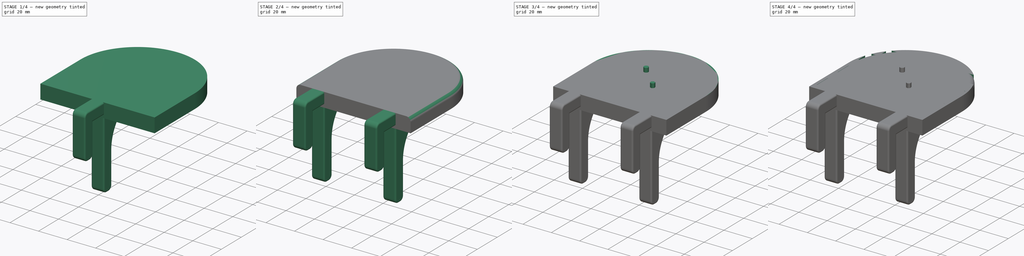
[diagram: build sequence overview — one tinted view per stage of 4, left to right]
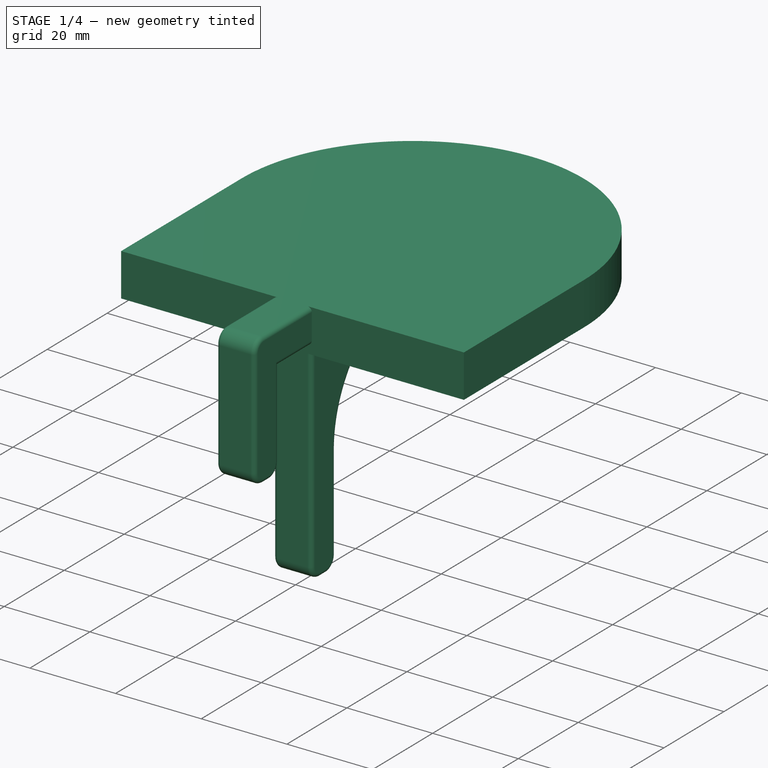
[diagram: stage 1 of 4 — iso view after this stage's code; geometry added in this stage tinted green]
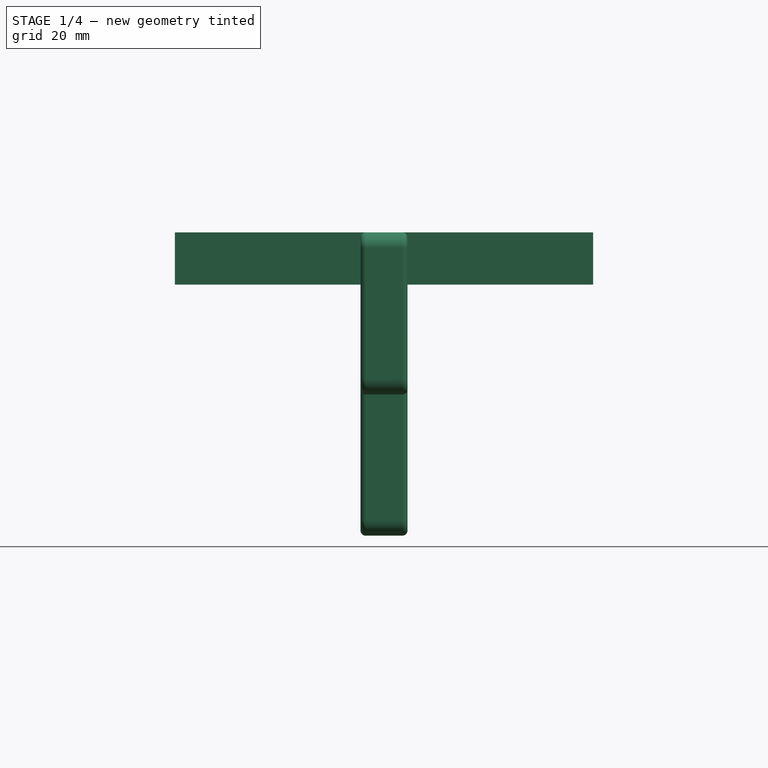
[diagram: stage 1 of 4 — front view after this stage's code; geometry added in this stage tinted green]
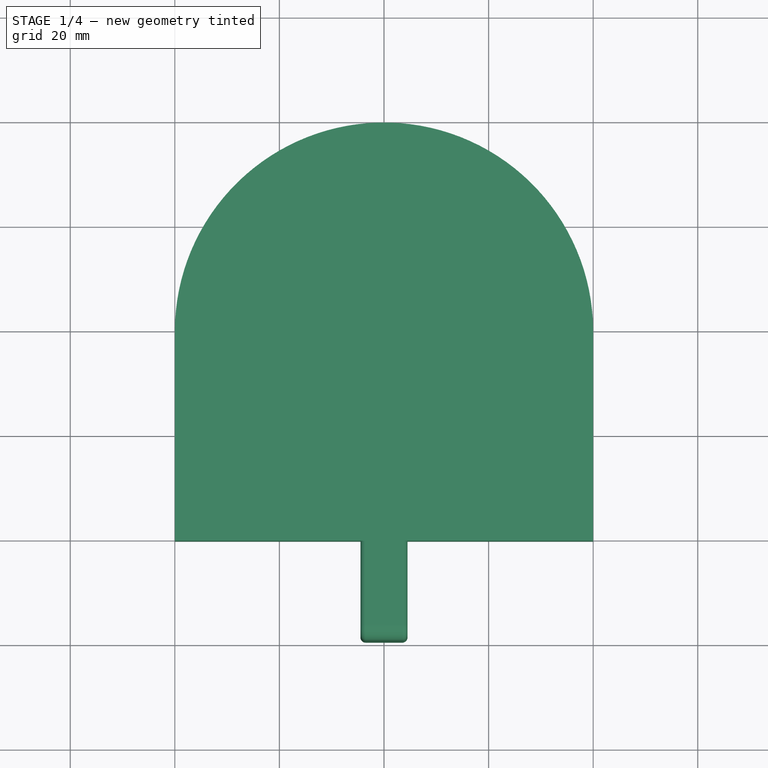
[diagram: stage 1 of 4 — top view after this stage's code; geometry added in this stage tinted green]
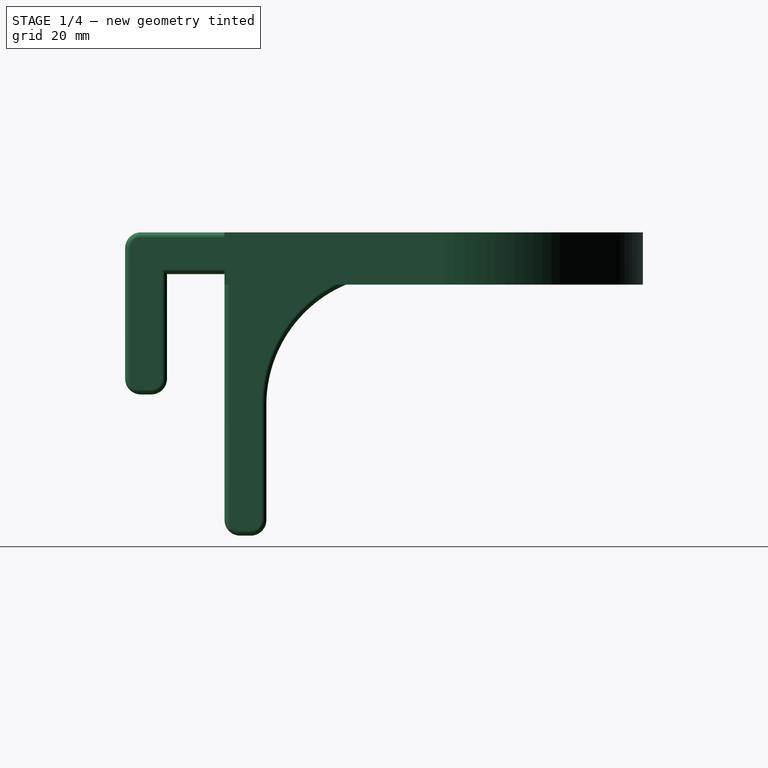
[diagram: stage 1 of 4 — right view after this stage's code; geometry added in this stage tinted green]
FCSTD DOCUMENT  (FreeCAD 1.0R38806 (Git))
Label: ActionFigureBracket
License: All rights reserved
LicenseURL: http://en.wikipedia.org/wiki/All_rights_reserved
objects: Sketcher::SketchObject×5, PartDesign::Body×4, PartDesign::Pad×3, PartDesign::Fillet×3, PartDesign::FeatureBase×2, PartDesign::Pocket×2, App::Part×2, App::Link×1, App::LinkGroup×1, Part::MultiFuse×1, Spreadsheet::Sheet×1
note: 43 computed .brp shape members not serialized (recipe doc carries the construction recipe); baked Part::Feature solids carry a one-line shape summary decoded from their .brp

FEATURE [Sketcher::SketchObject] Sketch  label="HookSketch"
  ArcFitTolerance = 0
  AttachmentSupport = -> [YZ_Plane001]
  FullyConstrained = true
  MakeInternals = false
  MapMode = 5
  Placement = pos=(0,0,0) rot=(0.57735,0.57735,0.57735;2.0944rad)
  sketch-geometry (28):
    g0: LineSegment StartX=3 StartY=0 StartZ=0 EndX=66 EndY=0 EndZ=0
    g1: LineSegment StartX=69 StartY=-3 StartZ=0 EndX=69 EndY=-5 EndZ=0
    g2: LineSegment StartX=66 StartY=-8 StartZ=0 EndX=52 EndY=-8 EndZ=0
    g3: LineSegment StartX=27 StartY=-33 StartZ=0 EndX=27 EndY=-55 EndZ=0
    g4: LineSegment StartX=24 StartY=-58 StartZ=0 EndX=22 EndY=-58 EndZ=0
    g5: LineSegment StartX=19 StartY=-55 StartZ=0 EndX=19 EndY=-8 EndZ=0
    g6: LineSegment StartX=19 StartY=-8 StartZ=0 EndX=8 EndY=-8 EndZ=0
    g7: LineSegment StartX=8 StartY=-8 StartZ=0 EndX=8 EndY=-28 EndZ=0
    g8: LineSegment StartX=5 StartY=-31 StartZ=0 EndX=3 EndY=-31 EndZ=0
    g9: LineSegment StartX=0 StartY=-28 StartZ=0 EndX=0 EndY=-3 EndZ=0
    g10: ArcOfCircle CenterX=3 CenterY=-3 CenterZ=0 NormalX=0 NormalY=0 NormalZ=1 AngleXU=0 Radius=3 StartAngle=1.5708 EndAngle=3.14159
    g11: GeomPoint [constr] X=0 Y=0 Z=0
    g12: ArcOfCircle CenterX=66 CenterY=-3 CenterZ=0 NormalX=0 NormalY=0 NormalZ=1 AngleXU=0 Radius=3 StartAngle=0 EndAngle=1.5708
    g13: GeomPoint [constr] X=69 Y=0 Z=0
    g14: ArcOfCircle CenterX=66 CenterY=-5 CenterZ=0 NormalX=0 NormalY=0 NormalZ=1 AngleXU=0 Radius=3 StartAngle=4.71239 EndAngle=6.28319
    g15: GeomPoint [constr] X=69 Y=-8 Z=0
    g16: ArcOfCircle CenterX=52 CenterY=-33 CenterZ=0 NormalX=0 NormalY=0 NormalZ=1 AngleXU=0 Radius=25 StartAngle=1.5708 EndAngle=3.14159
    g17: GeomPoint [constr] X=27 Y=-8 Z=0
    g18: ArcOfCircle CenterX=24 CenterY=-55 CenterZ=0 NormalX=0 NormalY=0 NormalZ=1 AngleXU=0 Radius=3 StartAngle=4.71239 EndAngle=6.28319
    g19: GeomPoint [constr] X=27 Y=-58 Z=0
    g20: ArcOfCircle CenterX=22 CenterY=-55 CenterZ=0 NormalX=0 NormalY=0 NormalZ=1 AngleXU=0 Radius=3 StartAngle=3.14159 EndAngle=4.71239
    g21: GeomPoint [constr] X=19 Y=-58 Z=0
    g22: GeomPoint [constr] X=19 Y=-8 Z=0
    g23: GeomPoint [constr] X=8 Y=-8 Z=0
    g24: ArcOfCircle CenterX=5 CenterY=-28 CenterZ=0 NormalX=0 NormalY=0 NormalZ=1 AngleXU=0 Radius=3 StartAngle=4.71239 EndAngle=6.28319
    g25: GeomPoint [constr] X=8 Y=-31 Z=0
    g26: ArcOfCircle CenterX=3 CenterY=-28 CenterZ=0 NormalX=0 NormalY=0 NormalZ=1 AngleXU=0 Radius=3 StartAngle=3.14159 EndAngle=4.71239
    g27: GeomPoint [constr] X=0 Y=-31 Z=0
  constraints (64):
    c: Coincident(g-1,g11)
    c: PointOnObject(g13,g-1)
    c: Vertical(g1)
    c: Horizontal(g2)
    c: Vertical(g3)
    c: Horizontal(g4)
    c: Vertical(g5)
    c: Horizontal(g6)
    c: Vertical(g7)
    c: PointOnObject(g27,g-2)
    c: Horizontal(g8)
    c: DistanceX(g21,g19) = 8
    c: DistanceX(g27,g25) = 8
    c: DistanceY(g19,g17) = 50
    c: DistanceY(g25,g23) = 23
    c: DistanceY(g15,g13) = 8
    c: DistanceY(g27,g11) = 31
    c: PointOnObject(g11,g9)
    c: PointOnObject(g11,g0)
    c: Tangent(g9,g10) = 1.5708
    c: Tangent(g0,g10) = 1.5708
    c: PointOnObject(g13,g0)
    c: PointOnObject(g13,g1)
    c: Tangent(g0,g12) = 1.5708
    c: Tangent(g1,g12) = 1.5708
    c: PointOnObject(g15,g1)
    c: PointOnObject(g15,g2)
    c: Tangent(g1,g14) = 1.5708
    c: Tangent(g2,g14) = 1.5708
    c: PointOnObject(g17,g2)
    c: PointOnObject(g17,g3)
    c: Tangent(g2,g16) = -1.5708
    c: Tangent(g3,g16) = -1.5708
    c: PointOnObject(g19,g3)
    c: PointOnObject(g19,g4)
    c: Tangent(g3,g18) = 1.5708
    c: Tangent(g4,g18) = 1.5708
    c: PointOnObject(g21,g4)
    c: PointOnObject(g21,g5)
    c: Tangent(g4,g20) = 1.5708
    c: Tangent(g5,g20) = 1.5708
    c: PointOnObject(g22,g5)
    c: PointOnObject(g22,g6)
    c: PointOnObject(g25,g7)
    c: PointOnObject(g25,g8)
    c: Tangent(g7,g24) = 1.5708
    c: Tangent(g8,g24) = 1.5708
    c: PointOnObject(g27,g8)
    c: PointOnObject(g27,g9)
    c: Tangent(g8,g26) = 1.5708
    c: Tangent(g9,g26) = 1.5708
    c: Equal(g10,g12)
    c: Equal(g10,g14)
    c: Equal(g10,g18)
    c: Equal(g10,g20)
    c: Equal(g10,g24)
    c: Equal(g10,g26)
    c: Radius(g10) = 3
    c: Radius(g16) = 25
    c: DistanceX(g6,g6) = 11
    c: Coincident(g7,g23)
    c: Coincident(g5,g6)
    c: Coincident(g7,g6)
    c: DistanceX(g5,g1) = 50
FEATURE [PartDesign::Pad] Pad  label="HookPad"
  Direction = (1,0,0)
  Length = 9
  Length2 = 10
  Midplane = true
  Placement = pos=(0,0,0) rot=(1,1,1;2.0944rad)
  Profile = -> Sketch
  ReferenceAxis = -> Sketch [N_Axis]
  Suppressed = false
  Type = 0
FEATURE [PartDesign::Fillet] Fillet  label="HookBodyFillet"
  Base = -> Pad [Face20,Face19]
  BaseFeature = -> Pad
  Placement = pos=(0,0,0) rot=(1,1,1;2.0944rad)
  Radius = 1
  SupportTransform = false
  Suppressed = false
  UseAllEdges = false
FEATURE [PartDesign::Body] Body  label="HookBody"
  AllowCompound = false
  Group = -> [Sketch,Pad,Fillet]
  Origin = -> Origin001
  Placement = pos=(-25,0,0) rot=(0,0,1;0rad)
  Tip = -> Fillet
FEATURE [Sketcher::SketchObject] Sketch001  label="PlateauBodySketch"
  ArcFitTolerance = 0
  AttachmentSupport = -> [XY_Plane002]
  FullyConstrained = true
  MakeInternals = false
  MapMode = 5
  expr: Constraints[17] = <<Spreadsheet>>.depth - <<Spreadsheet>>.width / 2
  expr: Constraints[9] = Spreadsheet.width
  sketch-geometry (7):
    g0: LineSegment StartX=-40 StartY=59 StartZ=0 EndX=-40 EndY=19 EndZ=0
    g1: LineSegment StartX=-40 StartY=19 StartZ=0 EndX=40 EndY=19 EndZ=0
    g2: LineSegment [constr] StartX=-40 StartY=19 StartZ=0 EndX=0 EndY=0 EndZ=0
    g3: LineSegment [constr] StartX=0 StartY=0 StartZ=0 EndX=40 EndY=19 EndZ=0
    g4: LineSegment StartX=40 StartY=19 StartZ=0 EndX=40 EndY=59 EndZ=0
    g5: GeomPoint [constr] X=2.5e-15 Y=59 Z=0
    g6: ArcOfCircle CenterX=2.5e-15 CenterY=59 CenterZ=0 NormalX=0 NormalY=0 NormalZ=1 AngleXU=0 Radius=40 StartAngle=0 EndAngle=3.14159
  constraints (18):
    c: Coincident(g0,g1)
    c: Horizontal(g1)
    c: DistanceY(g-1,g0) = 19
    c: Vertical(g0)
    c: Coincident(g2,g0)
    c: Coincident(g2,g-1)
    c: Coincident(g3,g2)
    c: Coincident(g3,g1)
    c: Equal(g2,g3)
    c: DistanceX(g1,g1) = 80
    c: Coincident(g4,g1)
    c: Vertical(g4)
    c: Horizontal(g4,g0)
    c: Horizontal(g0,g5)
    c: Coincident(g6,g5)
    c: Coincident(g6,g0)
    c: Coincident(g6,g4)
    c: DistanceY(g0,g0) = 40
FEATURE [App::Link] Link  label="HookBody001"
  LinkTransform = true
  LinkedObject = -> Body
FEATURE [App::LinkGroup] LinkGroup
  ElementList = -> [Link]
  LinkMode = 1
  Placement = pos=(50,0,0) rot=(0,0,1;0rad)
FEATURE [PartDesign::Pad] Pad001  label="PlateauPad"
  Direction = (0,0,1)
  Length = 10
  Length2 = 10
  Profile = -> Sketch001
  ReferenceAxis = -> Sketch001 [N_Axis]
  Reversed = true
  Suppressed = false
  Type = 0
  expr: Length = <<Spreadsheet>>.height
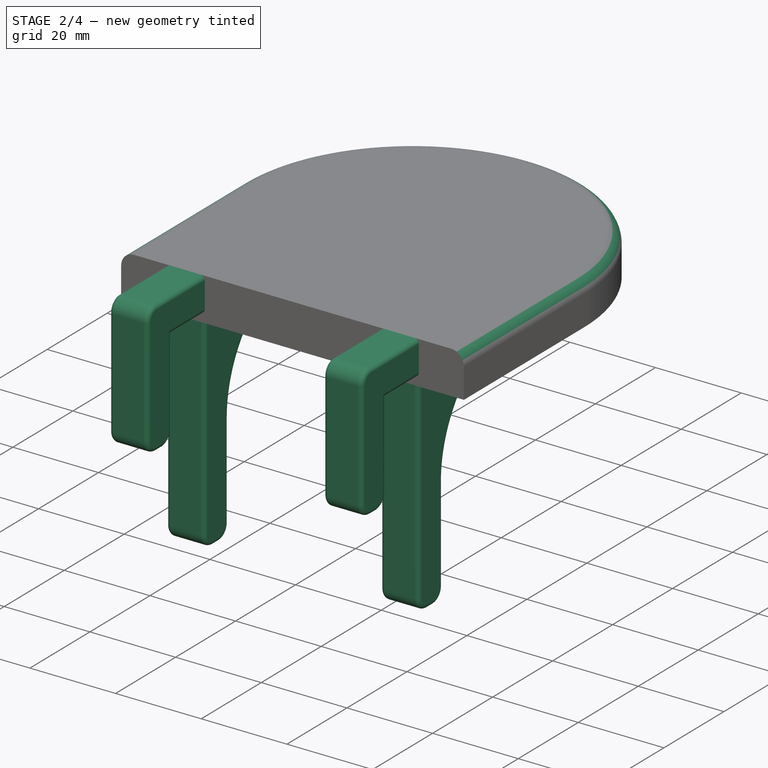
[diagram: stage 2 of 4 — iso view after this stage's code; geometry added in this stage tinted green]
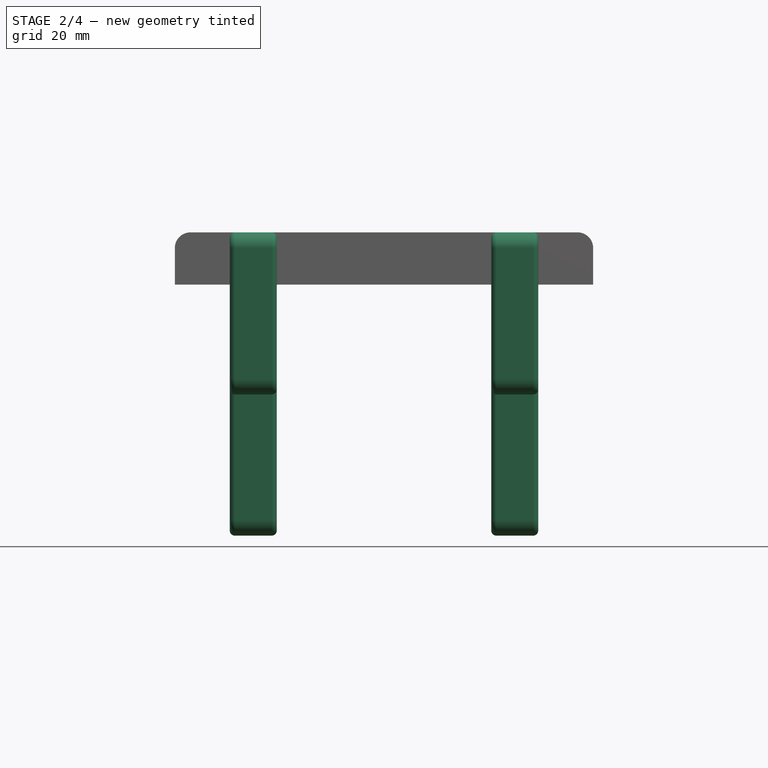
[diagram: stage 2 of 4 — front view after this stage's code; geometry added in this stage tinted green]
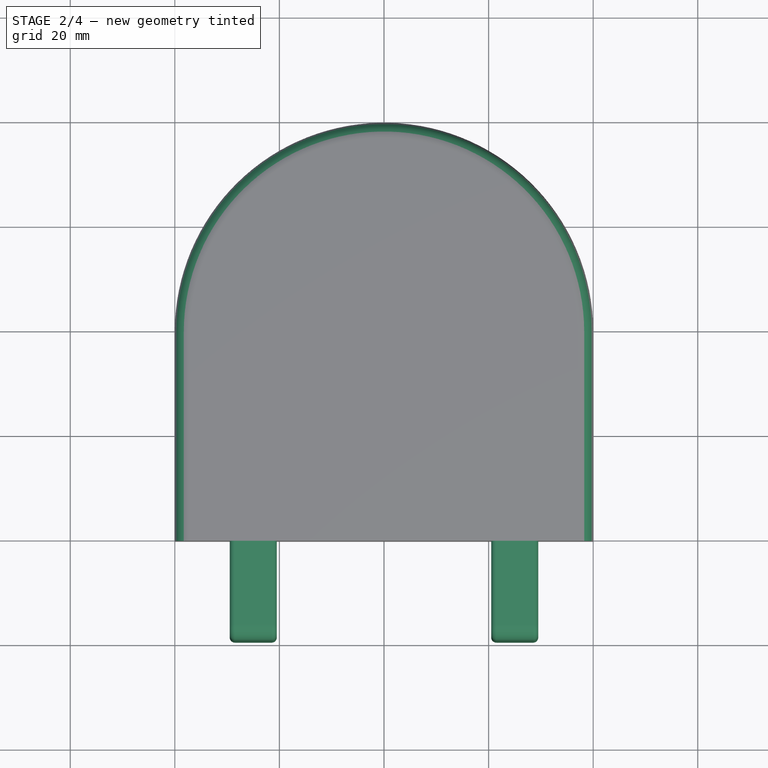
[diagram: stage 2 of 4 — top view after this stage's code; geometry added in this stage tinted green]
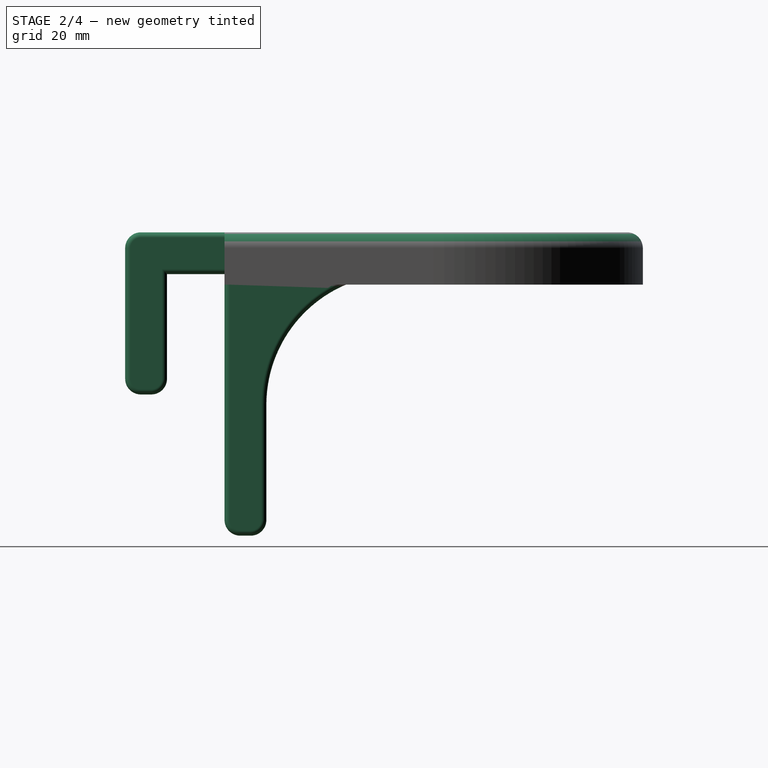
[diagram: stage 2 of 4 — right view after this stage's code; geometry added in this stage tinted green]
FEATURE [PartDesign::Body] Body001  label="PlateauBody"
  AllowCompound = false
  Group = -> [Sketch001,Pad001]
  Origin = -> Origin002
  Tip = -> Pad001
FEATURE [Part::MultiFuse] Fusion  label="BaseShelf"
  Refine = true
  Shapes = -> [Body,Body001,LinkGroup]
FEATURE [PartDesign::Body] Body002  label="Body"
  AllowCompound = false
  BaseFeature = -> Fusion
  Group = -> [BaseFeature,Sketch002,Sketch003,Pocket,Pocket001,Fillet001]
  Origin = -> Origin003
  Tip = -> Fillet001
FEATURE [App::Part] Part  label="OnePieceBones"
  Group = -> [Body002]
  Origin = -> Origin
FEATURE [PartDesign::FeatureBase] BaseFeature001
  BaseFeature = -> Fusion
  Suppressed = false
FEATURE [PartDesign::Fillet] Fillet003
  Base = -> BaseFeature001 [Edge67]
  BaseFeature = -> BaseFeature001
  Radius = 3
  SupportTransform = false
  Suppressed = false
  UseAllEdges = false
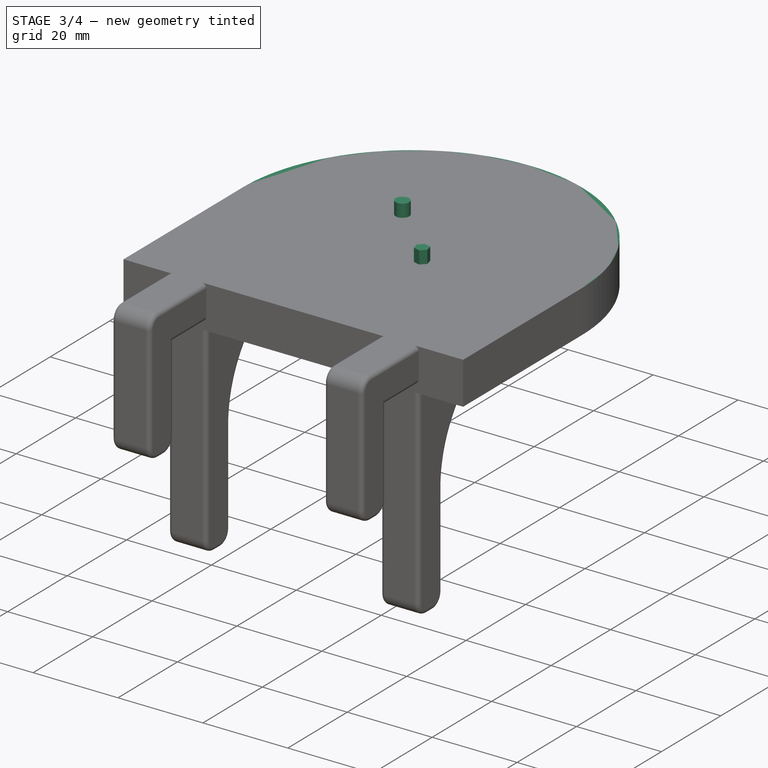
[diagram: stage 3 of 4 — iso view after this stage's code; geometry added in this stage tinted green]
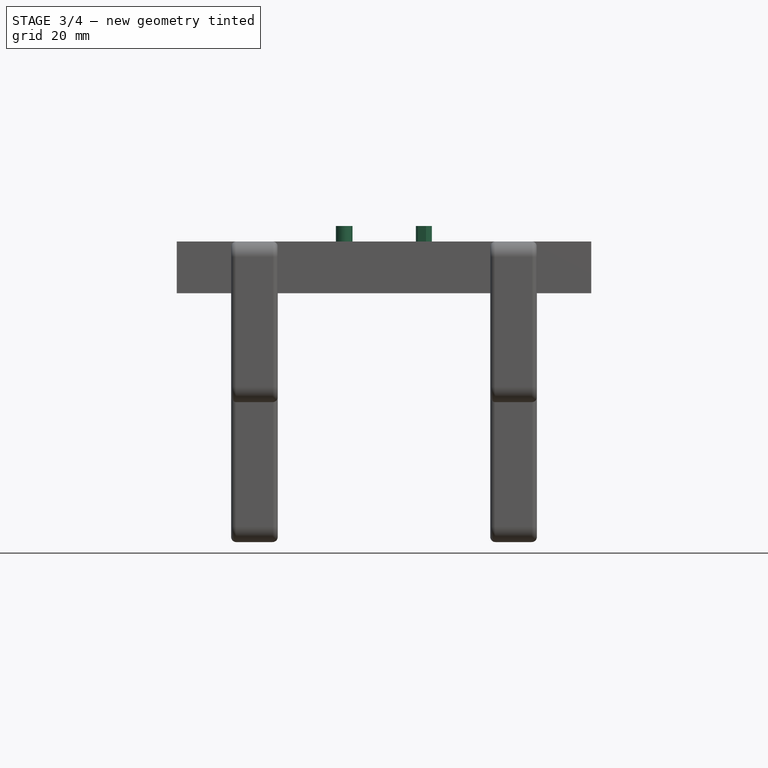
[diagram: stage 3 of 4 — front view after this stage's code; geometry added in this stage tinted green]
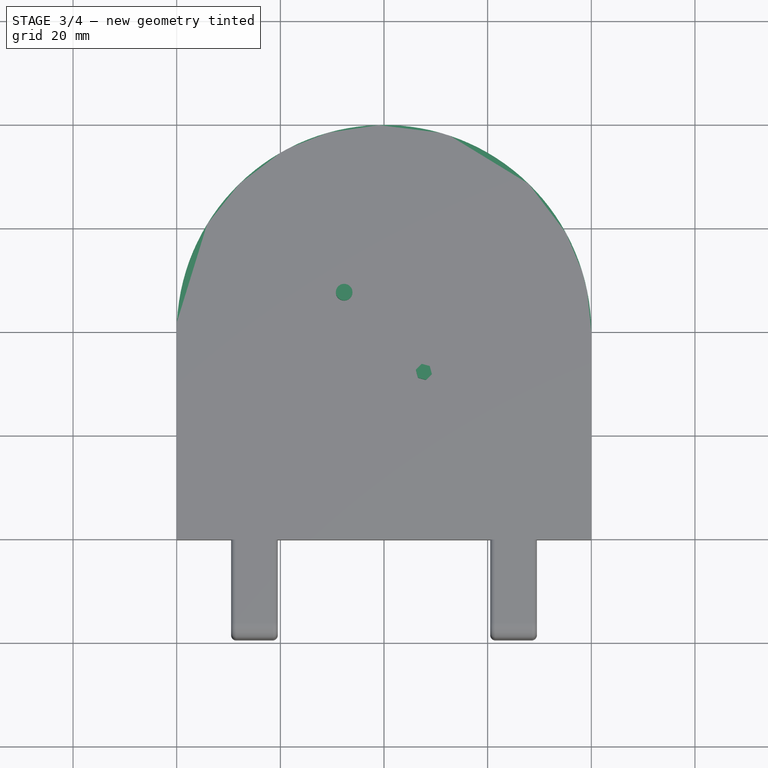
[diagram: stage 3 of 4 — top view after this stage's code; geometry added in this stage tinted green]
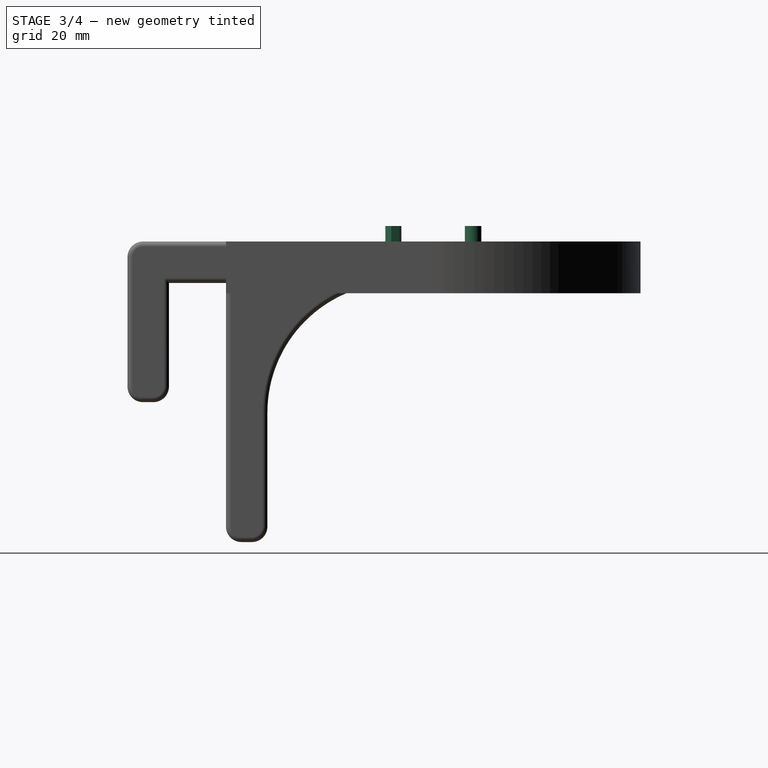
[diagram: stage 3 of 4 — right view after this stage's code; geometry added in this stage tinted green]
FEATURE [Sketcher::SketchObject] Sketch002  label="HoleSketch"
  ArcFitTolerance = 0
  AttachmentSupport = -> [Fusion]
  FullyConstrained = true
  MakeInternals = false
  MapMode = 5
  Placement = pos=(0,0,-8e-16) rot=(0,0,1;0rad)
  sketch-geometry (25):
    g0: LineSegment StartX=-37.75 StartY=23.5 StartZ=0 EndX=31.25 EndY=23.5 EndZ=0
    g1: LineSegment StartX=31.25 StartY=23.5 StartZ=0 EndX=31.25 EndY=33.75 EndZ=0
    g2: LineSegment StartX=31.25 StartY=33.75 StartZ=0 EndX=37.75 EndY=33.75 EndZ=0
    g3: LineSegment StartX=37.75 StartY=33.75 StartZ=0 EndX=37.75 EndY=44.5 EndZ=0
    g4: LineSegment StartX=37.75 StartY=44.5 StartZ=0 EndX=31.25 EndY=44.5 EndZ=0
    g5: LineSegment StartX=31.25 StartY=44.5 StartZ=0 EndX=31.25 EndY=54.75 EndZ=0
    g6: LineSegment StartX=31.25 StartY=54.75 StartZ=0 EndX=37.75 EndY=54.75 EndZ=0
    g7: LineSegment StartX=37.75 StartY=54.75 StartZ=0 EndX=37.75 EndY=65.5 EndZ=0
    g8: LineSegment StartX=37.75 StartY=65.5 StartZ=0 EndX=31.25 EndY=65.5 EndZ=0
    g9: LineSegment StartX=31.25 StartY=65.5 StartZ=0 EndX=31.25 EndY=75.75 EndZ=0
    g10: LineSegment StartX=31.25 StartY=75.75 StartZ=0 EndX=37.75 EndY=75.75 EndZ=0
    g11: LineSegment StartX=37.75 StartY=75.75 StartZ=0 EndX=37.75 EndY=86.5 EndZ=0
    g12: LineSegment StartX=37.75 StartY=86.5 StartZ=0 EndX=-31.25 EndY=86.5 EndZ=0
    g13: LineSegment StartX=-31.25 StartY=86.5 StartZ=0 EndX=-31.25 EndY=76.25 EndZ=0
    g14: LineSegment StartX=-31.25 StartY=76.25 StartZ=0 EndX=-37.75 EndY=76.25 EndZ=0
    g15: LineSegment StartX=-37.75 StartY=76.25 StartZ=0 EndX=-37.75 EndY=65.5 EndZ=0
    g16: LineSegment StartX=-37.75 StartY=65.5 StartZ=0 EndX=-31.25 EndY=65.5 EndZ=0
    g17: LineSegment StartX=-31.25 StartY=65.5 StartZ=0 EndX=-31.25 EndY=55.25 EndZ=0
    g18: LineSegment StartX=-31.25 StartY=55.25 StartZ=0 EndX=-37.75 EndY=55.25 EndZ=0
    g19: LineSegment StartX=-37.75 StartY=55.25 StartZ=0 EndX=-37.75 EndY=44.5 EndZ=0
    g20: LineSegment StartX=-37.75 StartY=44.5 StartZ=0 EndX=-31.25 EndY=44.5 EndZ=0
    g21: LineSegment StartX=-31.25 StartY=44.5 StartZ=0 EndX=-31.25 EndY=34.25 EndZ=0
    g22: LineSegment StartX=-31.25 StartY=34.25 StartZ=0 EndX=-37.75 EndY=34.25 EndZ=0
    g23: LineSegment StartX=-37.75 StartY=34.25 StartZ=0 EndX=-37.75 EndY=23.5 EndZ=0
    g24: GeomPoint [constr] X=0 Y=55 Z=0
  constraints (73):
    c: Coincident(g0,g1)
    c: Vertical(g1)
    c: Coincident(g1,g2)
    c: Horizontal(g2)
    c: Coincident(g2,g3)
    c: Vertical(g3)
    c: Coincident(g3,g4)
    c: Horizontal(g4)
    c: Coincident(g4,g5)
    c: Vertical(g5)
    c: Coincident(g5,g6)
    c: Horizontal(g6)
    c: Coincident(g6,g7)
    c: Vertical(g7)
    c: Coincident(g7,g8)
    c: Horizontal(g8)
    c: Coincident(g8,g9)
    c: Vertical(g9)
    c: Coincident(g9,g10)
    c: Horizontal(g10)
    c: Coincident(g10,g11)
    c: Vertical(g11)
    c: Coincident(g11,g12)
    c: Horizontal(g12)
    c: Coincident(g12,g13)
    c: Vertical(g13)
    c: Coincident(g13,g14)
    c: Horizontal(g14)
    c: Coincident(g14,g15)
    c: Vertical(g15)
    c: Coincident(g15,g16)
    c: Horizontal(g16)
    c: Coincident(g16,g17)
    c: Vertical(g17)
    c: Coincident(g17,g18)
    c: Horizontal(g18)
    c: Coincident(g18,g19)
    c: Vertical(g19)
    c: Coincident(g19,g20)
    c: Horizontal(g20)
    c: Coincident(g20,g21)
    c: Vertical(g21)
    c: Coincident(g21,g22)
    c: Horizontal(g22)
    c: Coincident(g22,g23)
    c: Coincident(g23,g0)
    c: Vertical(g23)
    c: Vertical(g22,g19)
    c: Vertical(g18,g15)
    c: Vertical(g13,g16)
    c: Vertical(g17,g20)
    c: Vertical(g10,g7)
    c: Vertical(g6,g3)
    c: Vertical(g1,g4)
    c: Vertical(g5,g8)
    c: Equal(g23,g19)
    c: Equal(g23,g15)
    c: Equal(g23,g3)
    c: Equal(g23,g7)
    c: Equal(g23,g11)
    c: Equal(g21,g17)
    c: Equal(g21,g13)
    c: Equal(g21,g1)
    c: Equal(g21,g5)
    c: DistanceY(g0,g11) = 63
    c: DistanceX(g0,g11) = 75.5
    c: DistanceY(g11,g11) = 10.75
    c: DistanceX(g8,g8) = 6.5
    c: Equal(g22,g2)
    c: Horizontal(g0)
    c: PointOnObject(g24,g-2)
    c: Symmetric(g11,g0,g24)
    c: DistanceY(g-1,g24) = 55
FEATURE [PartDesign::FeatureBase] BaseFeature
  BaseFeature = -> Fusion
  Suppressed = false
FEATURE [Sketcher::SketchObject] Sketch004
  ArcFitTolerance = 0
  AttachmentSupport = -> [BaseFeature001]
  FullyConstrained = true
  MakeInternals = false
  MapMode = 5
  Placement = pos=(0,0,-8e-16) rot=(0,0,1;0rad)
  sketch-geometry (10):
    g0: Circle CenterX=-7.68979 CenterY=66.6898 CenterZ=0 NormalX=0 NormalY=0 NormalZ=1 AngleXU=0 Radius=1.6
    g1: LineSegment StartX=7.27568 StartY=52.8557 StartZ=0 EndX=6.1443 EndY=51.7243 EndZ=0
    g2: Circle [constr] CenterX=7.68979 CenterY=51.3102 CenterZ=0 NormalX=0 NormalY=0 NormalZ=1 AngleXU=0 Radius=1.6
    g3: LineSegment [constr] StartX=-7.68979 StartY=66.6898 StartZ=0 EndX=7.68979 EndY=51.3102 EndZ=0
    g4: GeomPoint [constr] X=0 Y=59 Z=0
    g5: LineSegment StartX=7.27568 StartY=52.8557 StartZ=0 EndX=8.82116 EndY=52.4416 EndZ=0
    g6: LineSegment StartX=8.82116 StartY=52.4416 StartZ=0 EndX=9.23527 EndY=50.8961 EndZ=0
    g7: LineSegment StartX=9.23527 StartY=50.8961 StartZ=0 EndX=8.1039 EndY=49.7647 EndZ=0
    g8: LineSegment StartX=8.1039 StartY=49.7647 StartZ=0 EndX=6.55842 EndY=50.1788 EndZ=0
    g9: LineSegment StartX=6.55842 StartY=50.1788 StartZ=0 EndX=6.1443 EndY=51.7243 EndZ=0
  constraints (27):
    c: Diameter(g0) = 3.2
    c: PointOnObject(g1,g2)
    c: PointOnObject(g1,g2)
    c: Equal(g2,g0)
    c: Coincident(g3,g0)
    c: Coincident(g3,g2)
    c: Angle(g3,g-2) = 2.35619
    c: PointOnObject(g4,g-2)
    c: Symmetric(g0,g2,g4)
    c: Distance(g3) = 21.75
    c: DistanceY(g-1,g4) = 59
    c: Perpendicular(g3,g1)
    c: Coincident(g1,g5)
    c: PointOnObject(g5,g2)
    c: Coincident(g5,g6)
    c: PointOnObject(g6,g2)
    c: Coincident(g6,g7)
    c: PointOnObject(g7,g2)
    c: Coincident(g7,g8)
    c: PointOnObject(g8,g2)
    c: Coincident(g8,g9)
    c: Coincident(g9,g1)
    c: Equal(g9,g1)
    c: Equal(g1,g5)
    c: Equal(g5,g6)
    c: Equal(g6,g7)
    c: Equal(g7,g8)
FEATURE [PartDesign::Pad] Pad002
  BaseFeature = -> Fillet003
  Direction = (0,0,1)
  Length = 3
  Length2 = 10
  Profile = -> Sketch004
  ReferenceAxis = -> Sketch004 [N_Axis]
  Suppressed = false
  Type = 0
FEATURE [PartDesign::Body] Body003
  AllowCompound = false
  BaseFeature = -> Fusion
  Group = -> [BaseFeature001,Fillet003,Sketch004,Pad002]
  Origin = -> Origin005
  Tip = -> Pad002
FEATURE [App::Part] Part001  label="PopFigure"
  Group = -> [Body003]
  Origin = -> Origin004
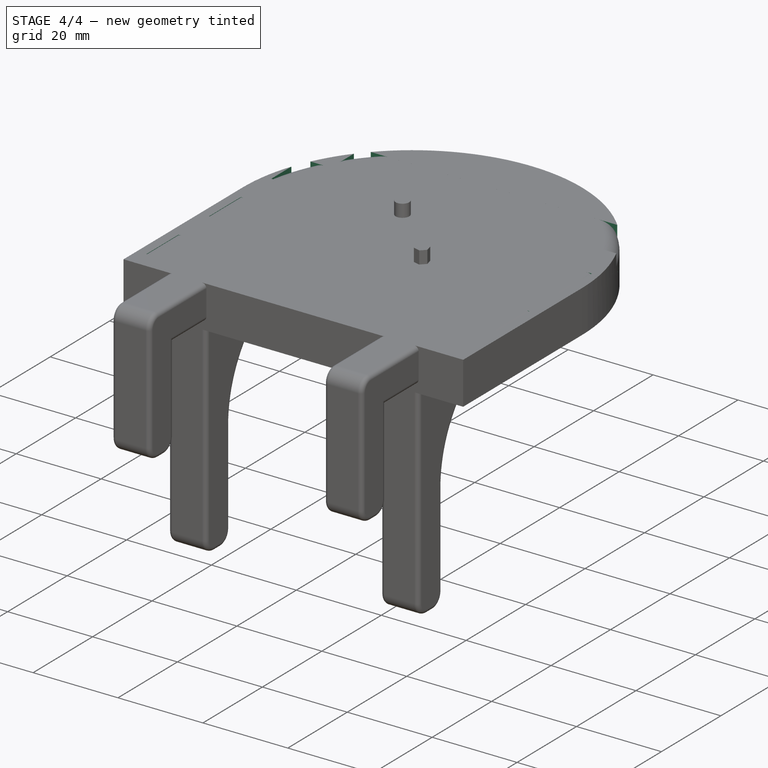
[diagram: stage 4 of 4 — iso view after this stage's code; geometry added in this stage tinted green]
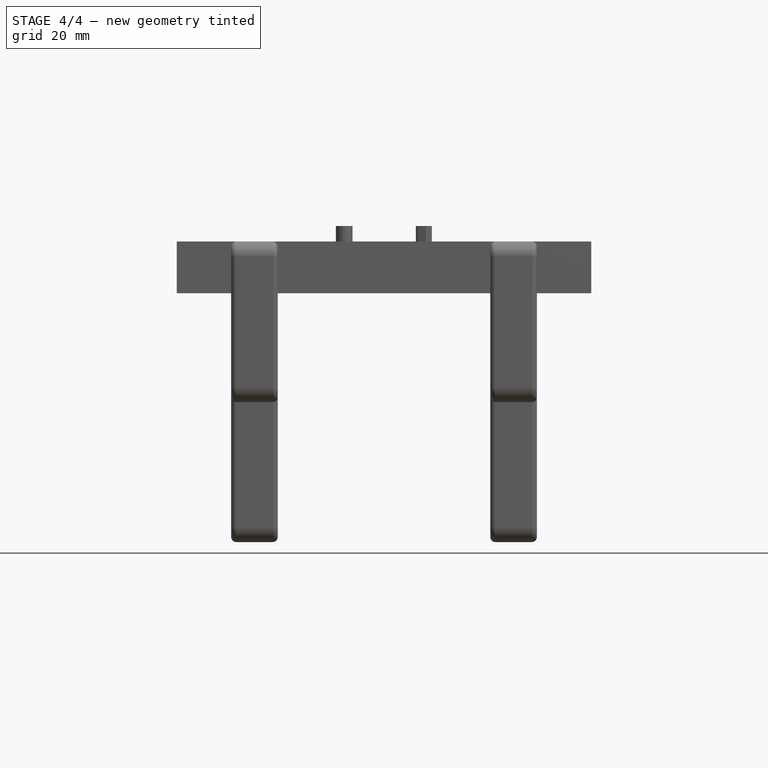
[diagram: stage 4 of 4 — front view after this stage's code; geometry added in this stage tinted green]
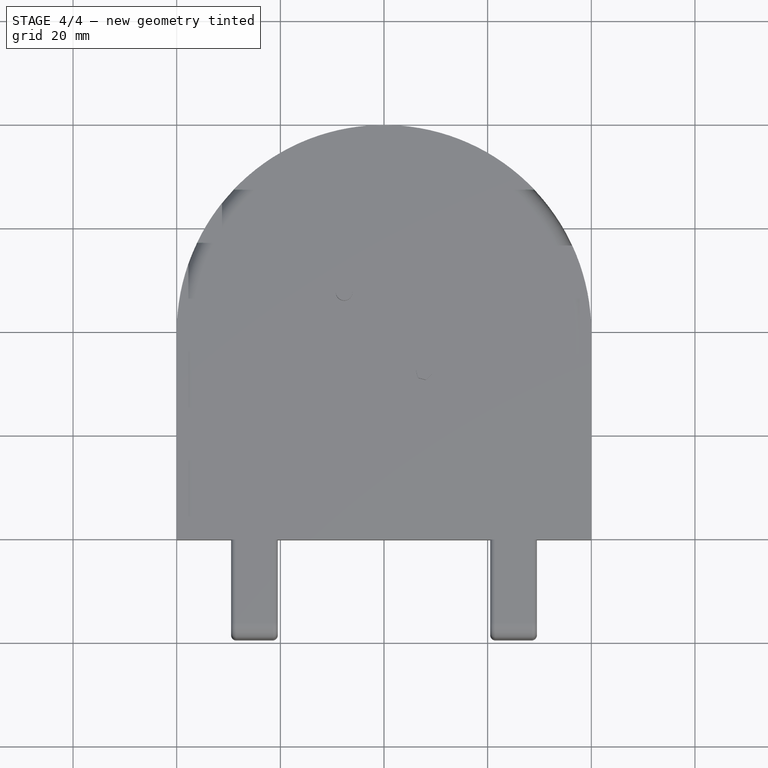
[diagram: stage 4 of 4 — top view after this stage's code; geometry added in this stage tinted green]
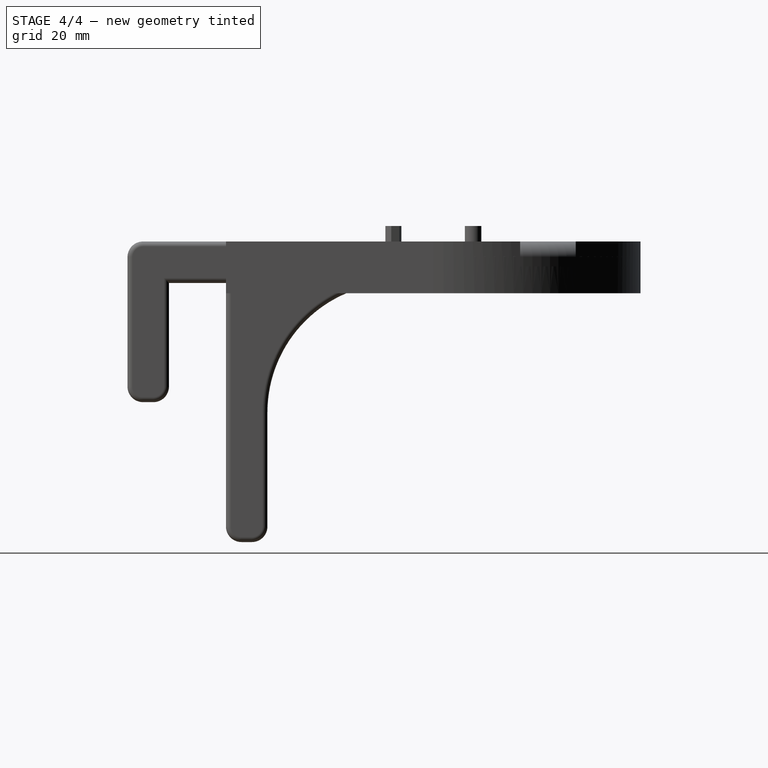
[diagram: stage 4 of 4 — right view after this stage's code; geometry added in this stage tinted green]
FEATURE [Sketcher::SketchObject] Sketch003  label="EasyRemovalHole"
  ArcFitTolerance = 0
  AttachmentSupport = -> [BaseFeature]
  FullyConstrained = true
  MakeInternals = false
  MapMode = 5
  Placement = pos=(0,0,-8e-16) rot=(0,0,1;0rad)
  expr: Constraints[2] = 19 + <<Spreadsheet>>.depth - <<Spreadsheet>>.width / 2
  sketch-geometry (1):
    g0: Circle CenterX=0 CenterY=59 CenterZ=0 NormalX=0 NormalY=0 NormalZ=1 AngleXU=0 Radius=10
  constraints (3):
    c: Diameter(g0) = 20
    c: PointOnObject(g0,g-2)
    c: DistanceY(g-1,g0) = 59
FEATURE [PartDesign::Pocket] Pocket  label="ActionFigureBasePocket"
  BaseFeature = -> BaseFeature
  Direction = (0,0,-1)
  Length = 4.8
  Length2 = 5
  Profile = -> Sketch002
  ReferenceAxis = -> Sketch002 [N_Axis]
  Suppressed = false
  Type = 0
FEATURE [PartDesign::Pocket] Pocket001  label="RemovalHolePocket"
  BaseFeature = -> Pocket
  Direction = (0,0,-1)
  Length = 5
  Length2 = 5
  Profile = -> Sketch003
  ReferenceAxis = -> Sketch003 [N_Axis]
  Suppressed = false
  Type = 1
FEATURE [Spreadsheet::Sheet] Spreadsheet
  Config = 0
  cells = B1='Width; C1='Depth; D1='Height; A2==hiddenref(.Config.String); B2(width)==.B3; C2(depth)==.C3; D2(height)==.D3; A3='Aloy; B3=80; C3=80; D3=10; A4='Nami; B4=90; C4=95; D4=10
  expr: .Config.Enum = cells[<<A3:|>>]
  expr: .cells.Bind.B2.ZZ2 = tuple(.cells; <<B>> + str(hiddenref(Config) + 3); <<ZZ>> + str(hiddenref(Config) + 3))
FEATURE [PartDesign::Fillet] Fillet001
  Base = -> Pocket001 [Edge166,Edge158,Edge164,Edge156,Edge150,Edge142,Edge140,Edge134,Edge132,Edge126]
  BaseFeature = -> Pocket001
  Radius = 1
  SupportTransform = false
  Suppressed = false
  UseAllEdges = false
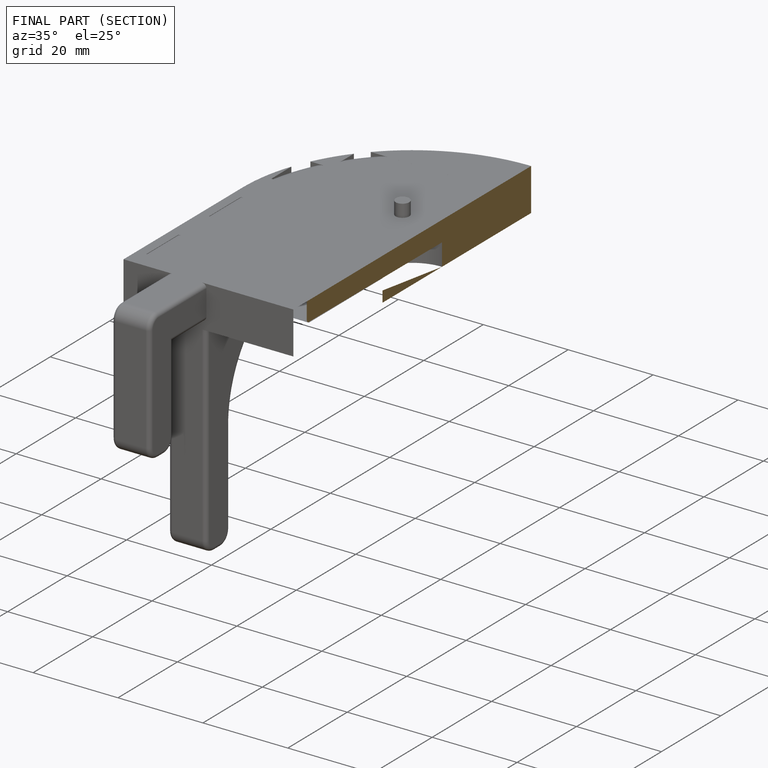
[diagram: finished part — half-section view (interior)]
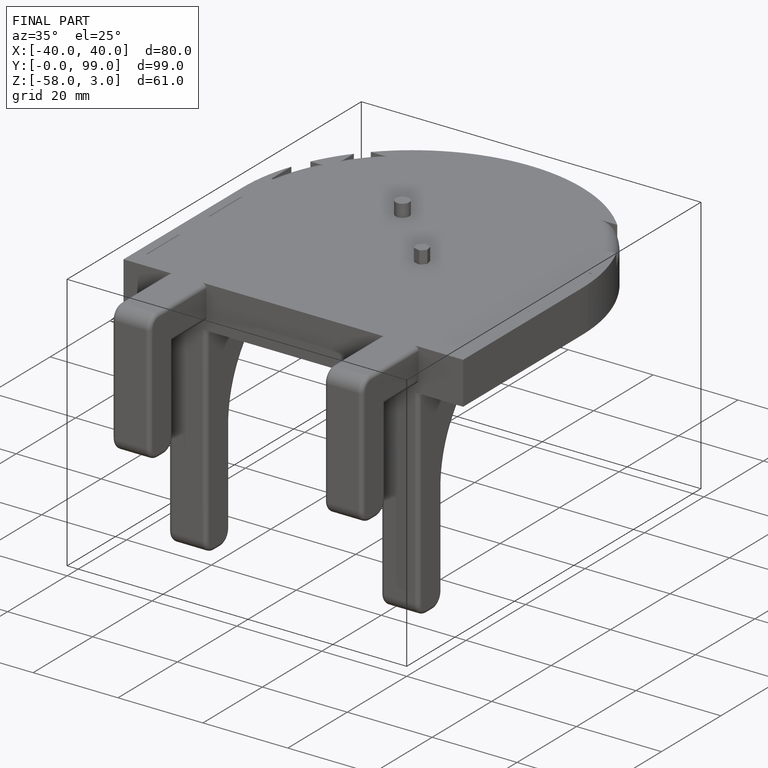
[diagram: finished part — iso view with bounding-box wireframe]
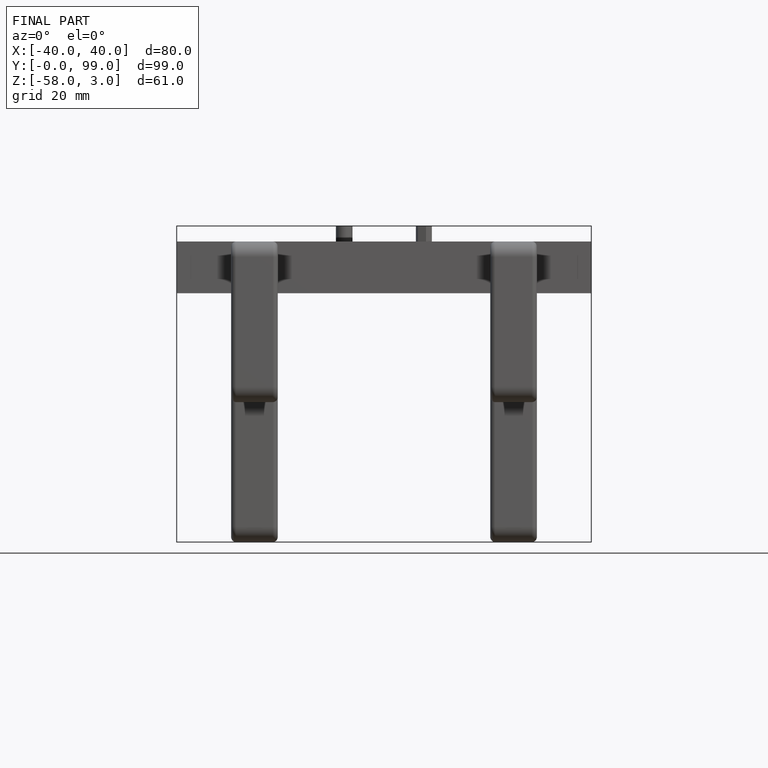
[diagram: finished part — front view with bounding-box wireframe]
